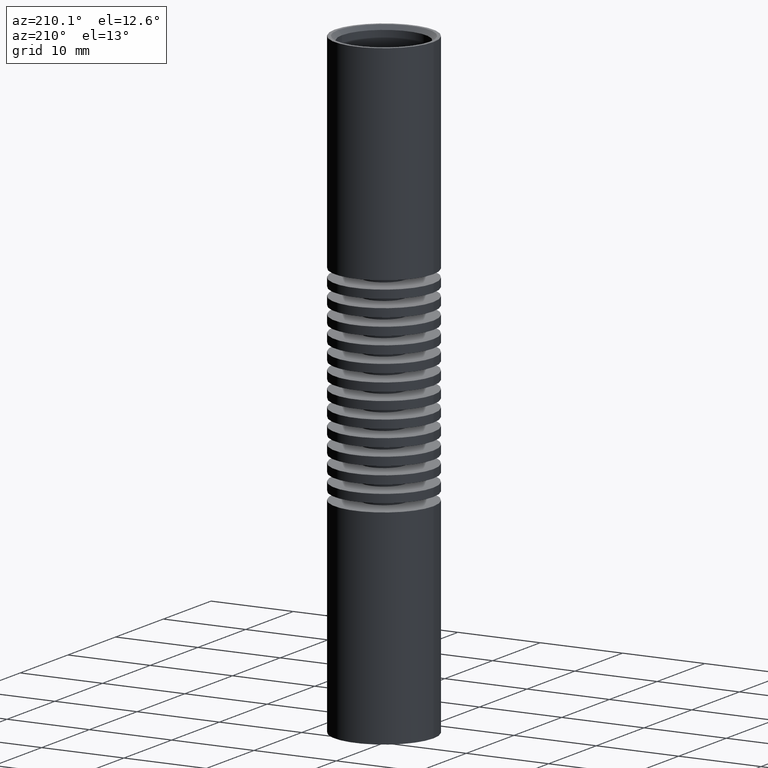
[diagram: clean part render]
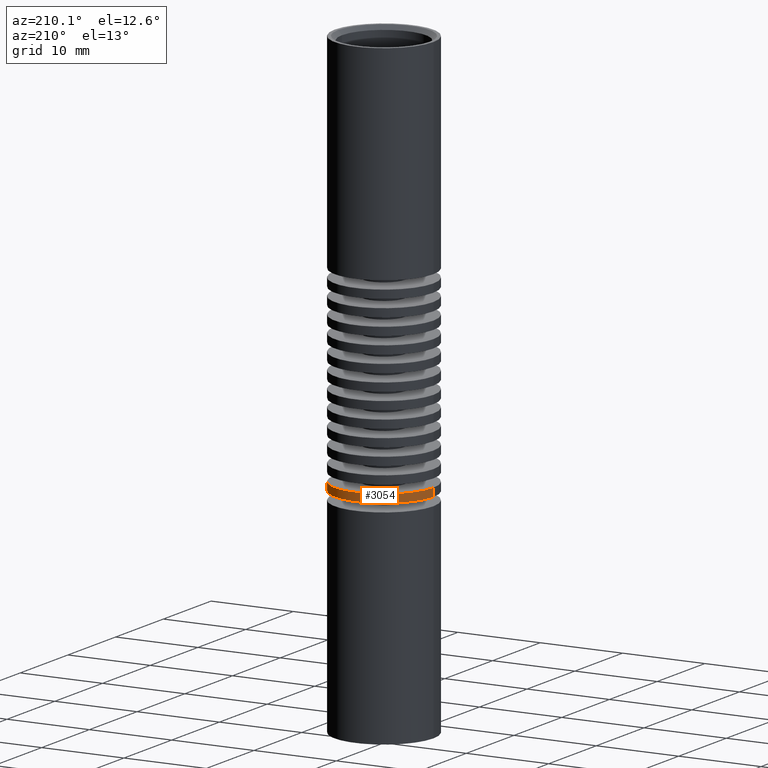
[diagram: same view with one face highlighted and labeled with its STEP entity id]
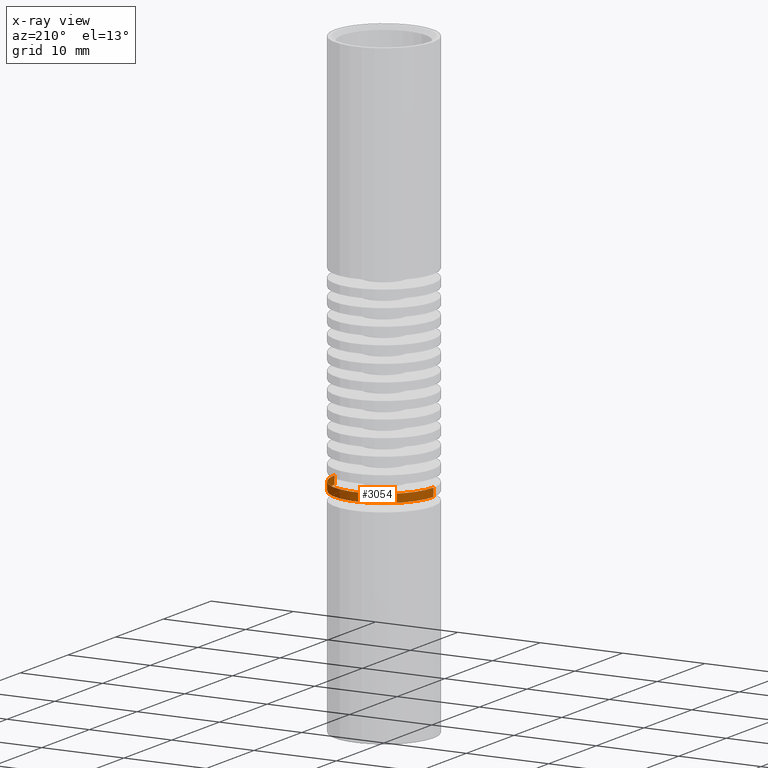
[diagram: x-ray of the same camera — body ghosted, the highlighted face saturated]
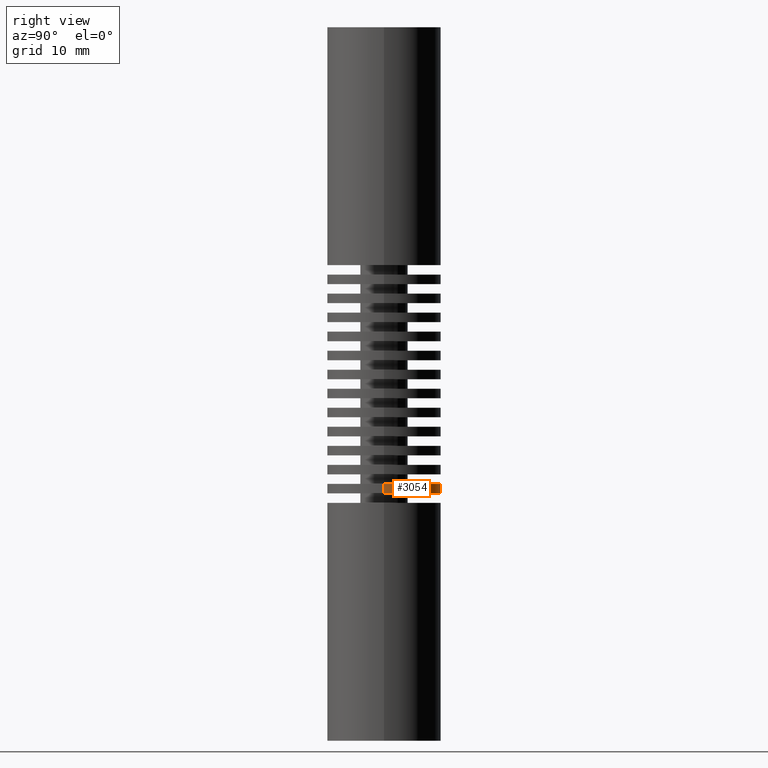
[diagram: same view with one face highlighted and labeled with its STEP entity id]
A machine part, auxiliary view. The second image highlights one B-rep face of the part: STEP entity #3054.
The next image is the same camera in x-ray: the body ghosted, the highlighted face saturated — about 0% of this face is hidden behind the body in this view.
A second angle (right view) of the same face is appended — the face is thin or edge-on in the first view.
In plain terms, the highlighted cylindrical surface (partial cylindrical patch) has radius 6 mm, axis along (0, -0, 1).
Its self-contained STEP definition (entity closure, byte-faithful):
#233 = EDGE_LOOP ( 'NONE', ( #935, #13247, #11485, #12082 ) ) ;
#365 = VERTEX_POINT ( 'NONE', #8147 ) ;
#935 = ORIENTED_EDGE ( 'NONE', *, *, #3689, .F. ) ;
#1689 = EDGE_CURVE ( 'NONE', #4609, #2225, #4029, .T. ) ;
#1932 = CARTESIAN_POINT ( 'NONE',  ( -6.000000000000002665, 7.347880794884122694E-16, -11.50000000000000178 ) ) ;
#2225 = VERTEX_POINT ( 'NONE', #7161 ) ;
#2650 = EDGE_CURVE ( 'NONE', #11497, #2225, #4297, .T. ) ;
#2968 = CARTESIAN_POINT ( 'NONE',  ( -2.478176394252581634E-16, 0.000000000000000000, -11.50000000000000355 ) ) ;
#3013 = DIRECTION ( 'NONE',  ( 1.000000000000000000, 0.000000000000000000, -2.891205793294677340E-16 ) ) ;
#3054 = ADVANCED_FACE ( 'NONE', ( #6431 ), #11655, .T. ) ;
#3289 = CARTESIAN_POINT ( 'NONE',  ( 0.000000000000000000, 0.000000000000000000, -10.50000000000000178 ) ) ;
#3689 = EDGE_CURVE ( 'NONE', #365, #4609, #12404, .T. ) ;
#4028 = DIRECTION ( 'NONE',  ( 2.478176394252581634E-16, -0.000000000000000000, 1.000000000000000000 ) ) ;
#4029 = LINE ( 'NONE', #4625, #12517 ) ;
#4072 = AXIS2_PLACEMENT_3D ( 'NONE', #6235, #11522, #9397 ) ;
#4153 = LINE ( 'NONE', #1932, #6428 ) ;
#4297 = CIRCLE ( 'NONE', #12852, 6.000000000000002665 ) ;
#4609 = VERTEX_POINT ( 'NONE', #7268 ) ;
#4625 = CARTESIAN_POINT ( 'NONE',  ( 6.000000000000002665, 0.000000000000000000, -11.50000000000000533 ) ) ;
#6235 = CARTESIAN_POINT ( 'NONE',  ( -2.478176394252581634E-16, 0.000000000000000000, -11.50000000000000355 ) ) ;
#6428 = VECTOR ( 'NONE', #13427, 1000.000000000000000 ) ;
#6431 = FACE_OUTER_BOUND ( 'NONE', #233, .T. ) ;
#6513 = DIRECTION ( 'NONE',  ( 2.478176394252581634E-16, -0.000000000000000000, 1.000000000000000000 ) ) ;
#6795 = AXIS2_PLACEMENT_3D ( 'NONE', #2968, #4028, #3013 ) ;
#7161 = CARTESIAN_POINT ( 'NONE',  ( 6.000000000000002665, 0.000000000000000000, -10.50000000000000355 ) ) ;
#7268 = CARTESIAN_POINT ( 'NONE',  ( 6.000000000000002665, 0.000000000000000000, -11.50000000000000533 ) ) ;
#8147 = CARTESIAN_POINT ( 'NONE',  ( -6.000000000000002665, 7.347880794884122694E-16, -11.50000000000000178 ) ) ;
#8563 = DIRECTION ( 'NONE',  ( -1.000000000000000000, 0.000000000000000000, 2.891205793294677340E-16 ) ) ;
#9397 = DIRECTION ( 'NONE',  ( -1.000000000000000000, 0.000000000000000000, 2.891205793294677340E-16 ) ) ;
#9715 = EDGE_CURVE ( 'NONE', #365, #11497, #4153, .T. ) ;
#11485 = ORIENTED_EDGE ( 'NONE', *, *, #2650, .T. ) ;
#11497 = VERTEX_POINT ( 'NONE', #11829 ) ;
#11522 = DIRECTION ( 'NONE',  ( -2.478176394252581141E-16, 0.000000000000000000, -1.000000000000000000 ) ) ;
#11655 = CYLINDRICAL_SURFACE ( 'NONE', #6795, 6.000000000000002665 ) ;
#11829 = CARTESIAN_POINT ( 'NONE',  ( -6.000000000000002665, 7.347880794884122694E-16, -10.50000000000000000 ) ) ;
#12082 = ORIENTED_EDGE ( 'NONE', *, *, #1689, .F. ) ;
#12404 = CIRCLE ( 'NONE', #4072, 6.000000000000002665 ) ;
#12517 = VECTOR ( 'NONE', #6513, 1000.000000000000000 ) ;
#12708 = DIRECTION ( 'NONE',  ( -2.478176394252581141E-16, 0.000000000000000000, -1.000000000000000000 ) ) ;
#12852 = AXIS2_PLACEMENT_3D ( 'NONE', #3289, #12708, #8563 ) ;
#13247 = ORIENTED_EDGE ( 'NONE', *, *, #9715, .T. ) ;
#13427 = DIRECTION ( 'NONE',  ( 2.478176394252581634E-16, -0.000000000000000000, 1.000000000000000000 ) ) ;